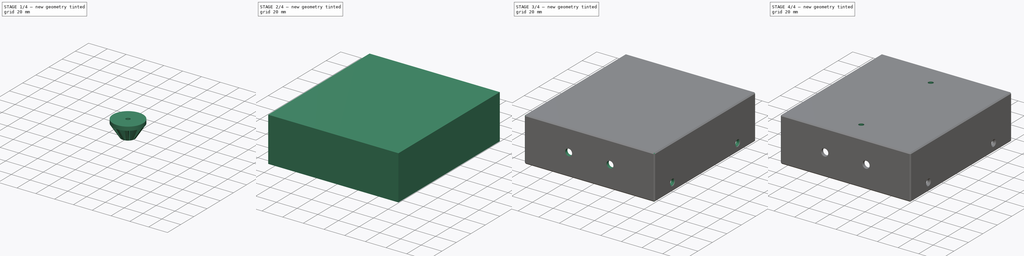
[diagram: build sequence overview — one tinted view per stage of 4, left to right]
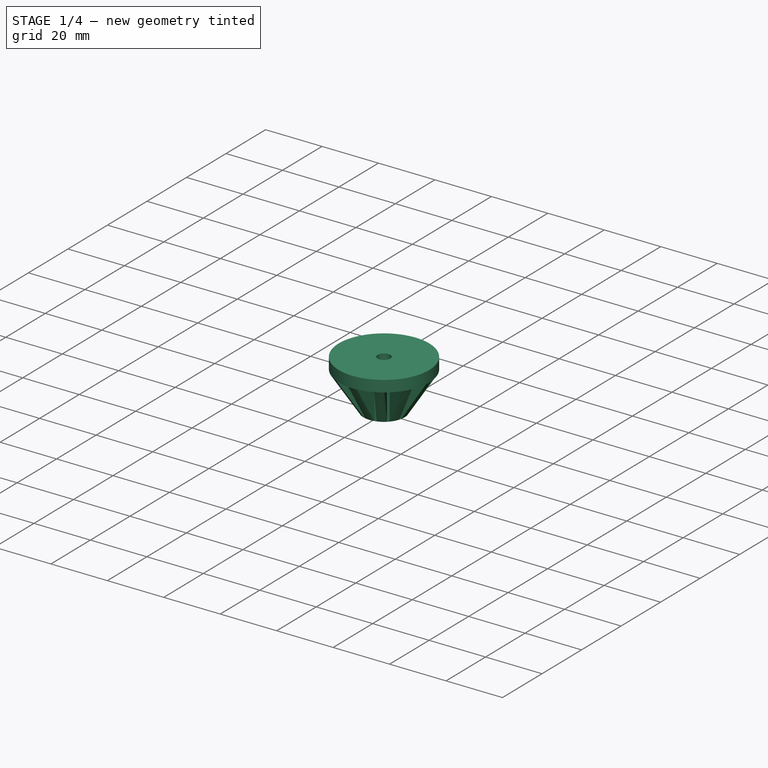
[diagram: stage 1 of 4 — iso view after this stage's code; geometry added in this stage tinted green]
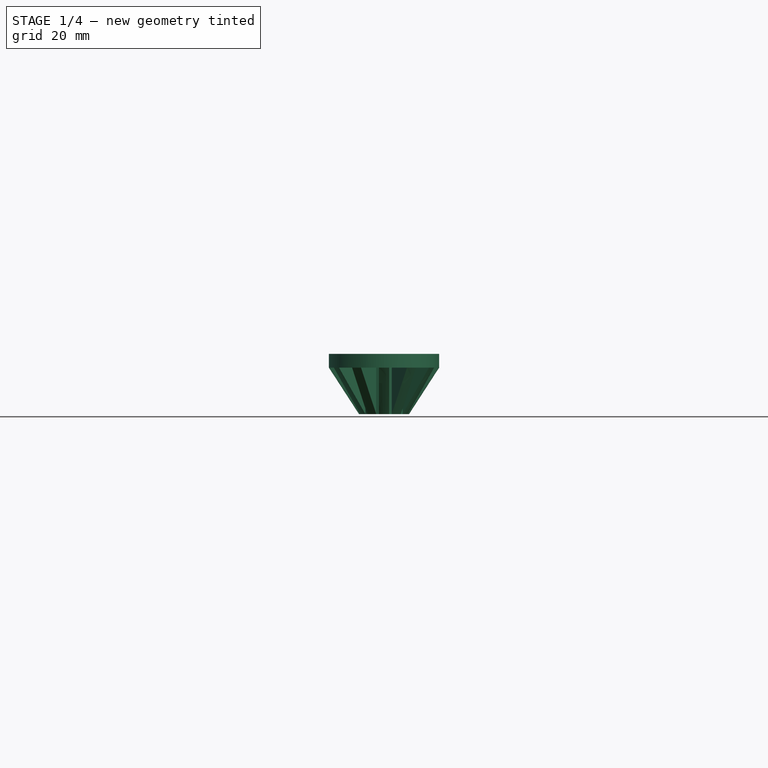
[diagram: stage 1 of 4 — front view after this stage's code; geometry added in this stage tinted green]
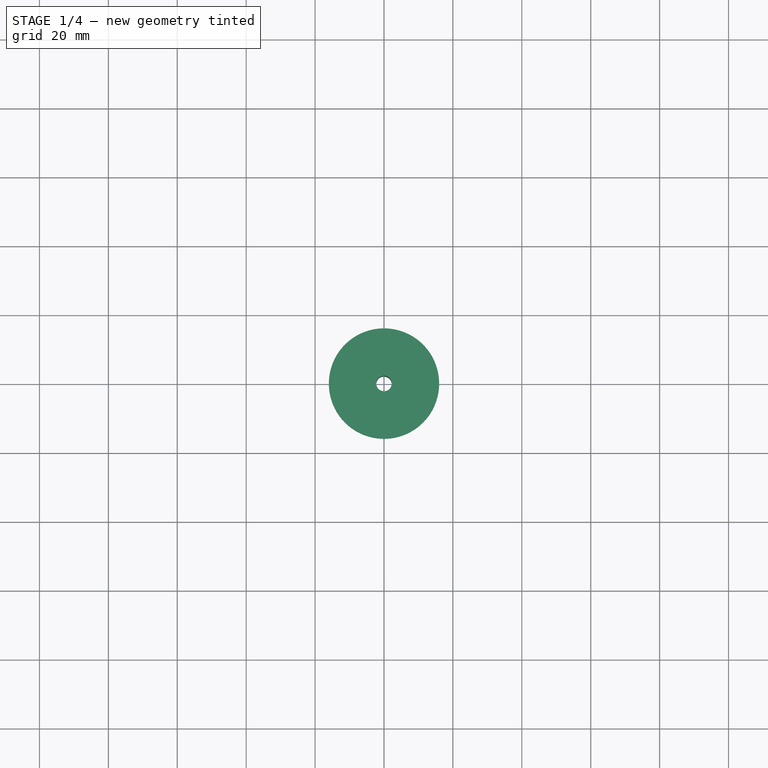
[diagram: stage 1 of 4 — top view after this stage's code; geometry added in this stage tinted green]
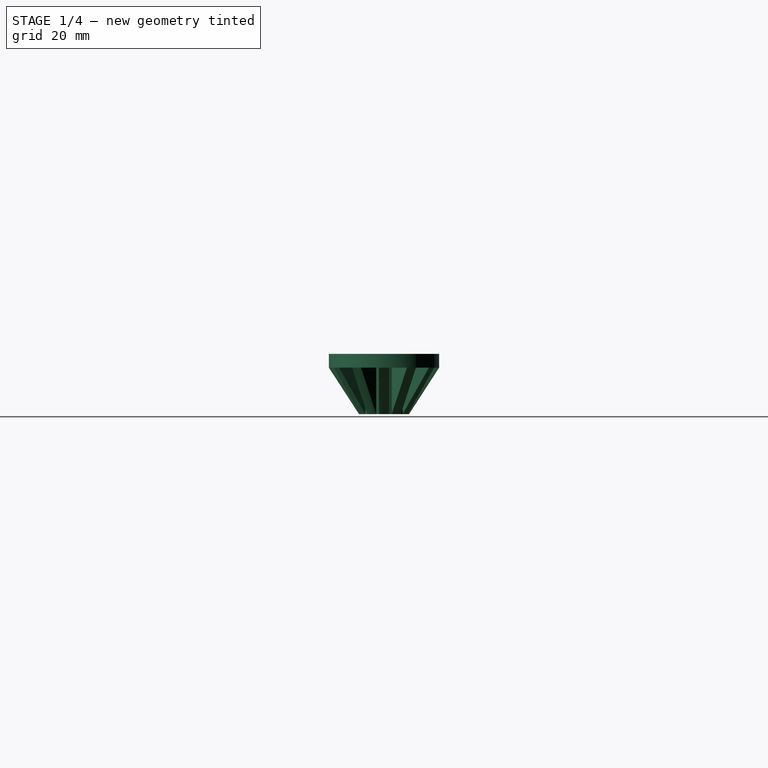
[diagram: stage 1 of 4 — right view after this stage's code; geometry added in this stage tinted green]
FCSTD DOCUMENT  (FreeCAD 0.18R16110 (Git))
Label: Top Cap Assembly
License: All rights reserved
LicenseURL: http://en.wikipedia.org/wiki/All_rights_reserved
objects: Sketcher::SketchObject×6, PartDesign::Chamfer×4, PartDesign::Pocket×4, PartDesign::Body×2, PartDesign::Pad×1, PartDesign::Thickness×1, PartDesign::Revolution×1, PartDesign::PolarPattern×1, Part::FeaturePython×1, App::Part×1
note: 27 computed .brp shape members not serialized (recipe doc carries the construction recipe); baked Part::Feature solids carry a one-line shape summary decoded from their .brp

FEATURE [PartDesign::Body] Body  label="Cap"
  Group = -> [Sketch,Pad,Thickness,Chamfer,Sketch001,Pocket,Chamfer001,Sketch002,Pocket001,Chamfer002,Sketch003,Pocket002,Chamfer003]
  Origin = -> Origin
  Tip = -> Chamfer003
FEATURE [Sketcher::SketchObject] Sketch004  label="Load Spreader profile"
  MapMode = 5
  Placement = pos=(0,0,0) rot=(0.57735,0.57735,0.57735;2.0944rad)
  Support = -> [YZ_Plane001]
  sketch-geometry (6):
    g0: LineSegment StartX=2.25 StartY=-17.5 StartZ=0 EndX=7.25 EndY=-17.5 EndZ=0
    g1: LineSegment StartX=7.25 StartY=-17.5 StartZ=0 EndX=16 EndY=-4 EndZ=0
    g2: LineSegment StartX=16 StartY=-4 StartZ=0 EndX=16 EndY=0 EndZ=0
    g3: LineSegment StartX=16 StartY=0 StartZ=0 EndX=2.25 EndY=0 EndZ=0
    g4: LineSegment StartX=2.25 StartY=0 StartZ=0 EndX=2.25 EndY=-17.5 EndZ=0
    g5: GeomPoint X=-2.25 Y=0 Z=0
  constraints (16):
    c: Horizontal(g0)
    c: Coincident(g0,g1)
    c: Coincident(g1,g2)
    c: Coincident(g2,g3)
    c: Horizontal(g3)
    c: Coincident(g3,g4)
    c: Coincident(g4,g0)
    c: Vertical(g4)
    c: Distance(g4) = 17.5
    c: Vertical(g2)
    c: Distance(g0) = 5
    c: DistanceX(g2) = 16
    c: Distance(g2) = 4
    c: Symmetric(g3,g5,g-2)
    c: Distance(g3,g5) = 4.5
    c: PointOnObject(g3,g-1)
FEATURE [PartDesign::Revolution] Revolution  label="Make load spreader cone"
  Angle = 360
  Axis = (-2e-16,3e-16,1)
  Base = (0,0,0)
  Placement = pos=(0,0,0) rot=(0.57735,0.57735,0.57735;2.0944rad)
  Profile = -> Sketch004
  ReferenceAxis = -> Sketch004 [V_Axis]
  Reversed = true
FEATURE [Sketcher::SketchObject] Sketch005  label="Load spreader cutting tool"
  ExternalGeometry = -> [Revolution]
  MapMode = 5
  Placement = pos=(9.7e-15,-6.8e-15,-17.5) rot=(0.707107,0.707107,0;3.14159rad)
  Support = -> [Revolution]
  sketch-geometry (6):
    g0: LineSegment [constr] StartX=1.3e-15 StartY=16 StartZ=0 EndX=1.3e-15 EndY=7.25 EndZ=0
    g1: LineSegment [constr] StartX=3.625 StartY=6.27868 StartZ=0 EndX=8 EndY=13.8564 EndZ=0
    g2: ArcOfCircle CenterX=0 CenterY=0 CenterZ=0 NormalX=0 NormalY=0 NormalZ=1 AngleXU=0 Radius=7.25 StartAngle=1.25537 EndAngle=1.36239
    g3: ArcOfCircle CenterX=0 CenterY=0 CenterZ=0 NormalX=0 NormalY=0 NormalZ=1 AngleXU=0 Radius=16 StartAngle=1.14098 EndAngle=1.47691
    g4: LineSegment StartX=2.24913 StartY=6.89231 StartZ=0 EndX=6.66723 EndY=14.5447 EndZ=0
    g5: LineSegment StartX=1.5 StartY=15.9295 StartZ=0 EndX=1.5 EndY=7.09313 EndZ=0
  constraints (18):
    c: Vertical(g0)
    c: Angle(g1,g0) = 0.523599
    c: Perpendicular(g0,g-4) = 4.71239
    c: Perpendicular(g1,g-4) = 1.5708
    c: Perpendicular(g1,g-3) = 1.5708
    c: Perpendicular(g0,g-3) = 4.71239
    c: Coincident(g2,g3)
    c: Coincident(g2,g-3)
    c: Coincident(g5,g3)
    c: Coincident(g2,g5)
    c: Coincident(g2,g4)
    c: Coincident(g3,g4)
    c: Equal(g-4,g2)
    c: Equal(g3,g-3)
    c: Parallel(g4,g1)
    c: Parallel(g0,g5)
    c: DistanceX(g0,g3) = 1.5
    c: Distance(g3,g1) = 1.5
FEATURE [PartDesign::Pocket] Pocket003  label="Cut waste"
  BaseFeature = -> Revolution
  Length = 13.5
  Length2 = 100
  Placement = pos=(0,0,0) rot=(0.57735,0.57735,0.57735;2.0944rad)
  Profile = -> Sketch005
  Type = 0
FEATURE [PartDesign::PolarPattern] PolarPattern
  Angle = 360
  Axis = -> Sketch005 [N_Axis]
  BaseFeature = -> Pocket003
  Occurrences = 12
  Originals = -> [Pocket003]
  Placement = pos=(0,0,0) rot=(0.57735,0.57735,0.57735;2.0944rad)
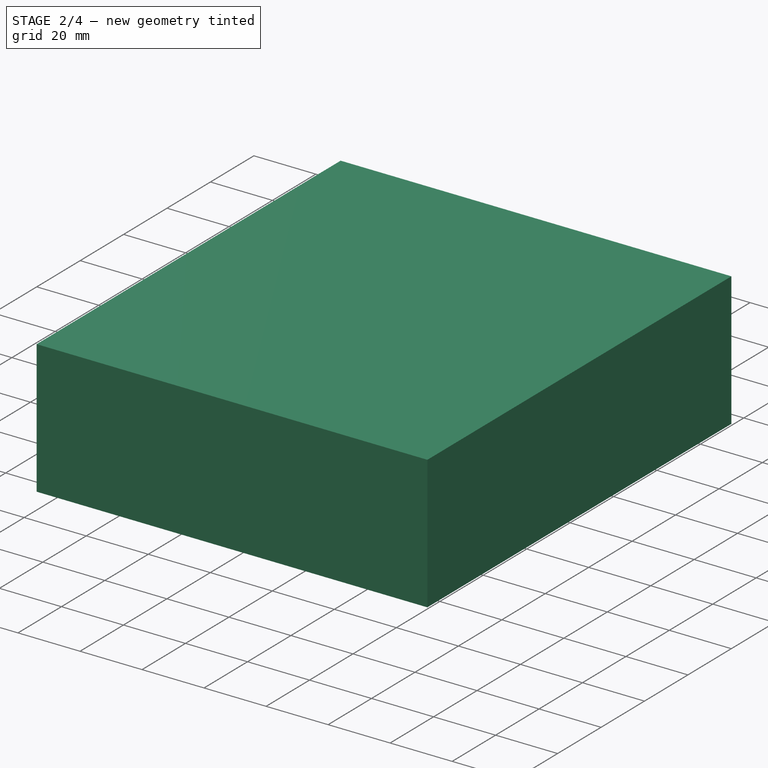
[diagram: stage 2 of 4 — iso view after this stage's code; geometry added in this stage tinted green]
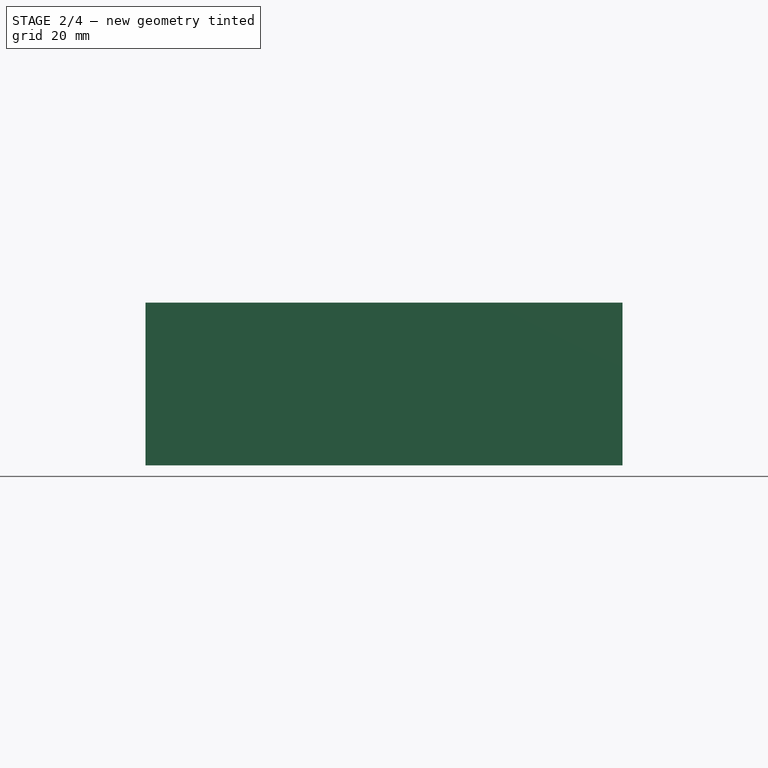
[diagram: stage 2 of 4 — front view after this stage's code; geometry added in this stage tinted green]
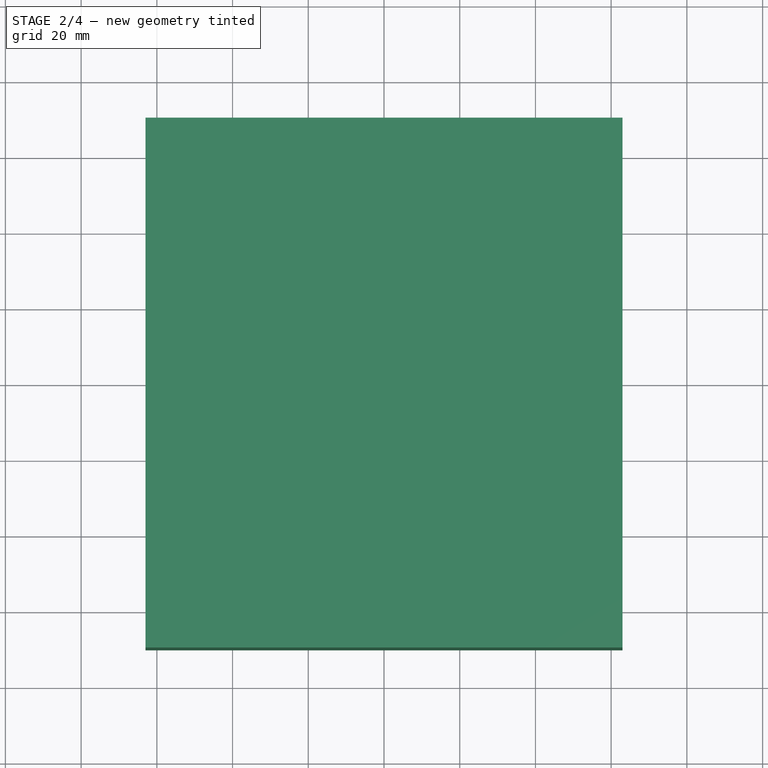
[diagram: stage 2 of 4 — top view after this stage's code; geometry added in this stage tinted green]
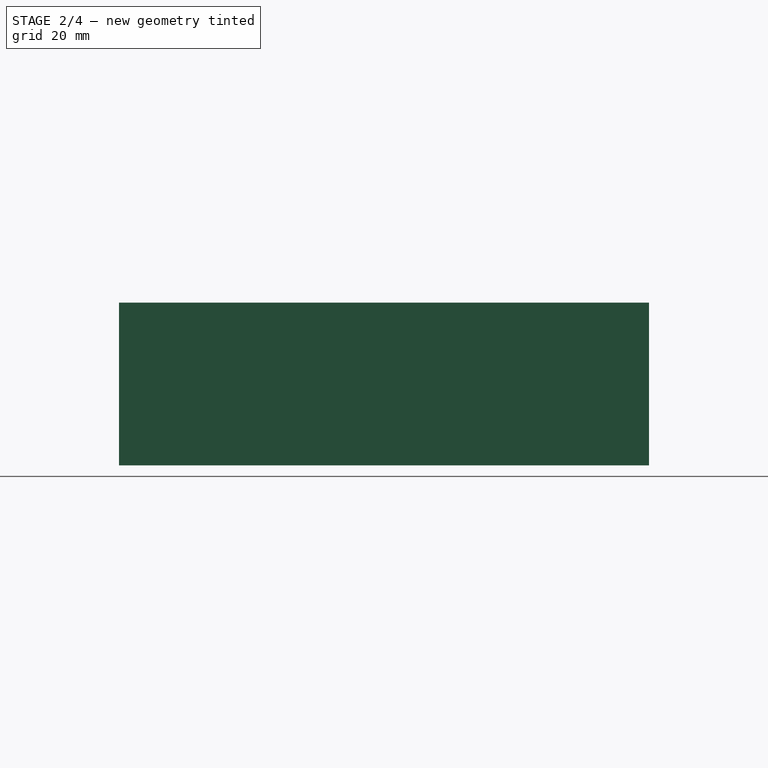
[diagram: stage 2 of 4 — right view after this stage's code; geometry added in this stage tinted green]
FEATURE [Sketcher::SketchObject] Sketch  label="top cap profile"
  MapMode = 5
  Support = -> [XY_Plane]
  sketch-geometry (4):
    g0: LineSegment StartX=-63 StartY=70 StartZ=0 EndX=63 EndY=70 EndZ=0
    g1: LineSegment StartX=63 StartY=70 StartZ=0 EndX=63 EndY=-70 EndZ=0
    g2: LineSegment StartX=63 StartY=-70 StartZ=0 EndX=-63 EndY=-70 EndZ=0
    g3: LineSegment StartX=-63 StartY=-70 StartZ=0 EndX=-63 EndY=70 EndZ=0
  constraints (10):
    c: Coincident(g0,g1)
    c: Coincident(g1,g2)
    c: Coincident(g2,g3)
    c: Coincident(g3,g0)
    c: Horizontal(g2)
    c: Vertical(g1)
    c: Symmetric(g0,g0,g-2)
    c: Symmetric(g0,g2,g-1)
    c: Distance(g0) = 126
    c: Distance(g3) = 140
FEATURE [PartDesign::Pad] Pad  label="Make top cap block"
  Length = 43
  Length2 = 100
  Profile = -> Sketch
  Type = 0
FEATURE [PartDesign::Thickness] Thickness  label="Turn block into a shell"
  Base = -> Pad [Face5]
  BaseFeature = -> Pad
  Join = 1
  Mode = 0
  Reversed = true
  Value = 3
FEATURE [PartDesign::Body] Body001  label="Optional Load spreader"
  Group = -> [Sketch004,Revolution,Sketch005,Pocket003,PolarPattern]
  Origin = -> Origin001
  Placement = pos=(0,-48,39.9) rot=(0,0,1;0rad)
  Tip = -> PolarPattern
FEATURE [Part::FeaturePython] Array  label="Optional load spreader array"  # Draft array (typed FeaturePython)
  Angle = 360
  ArrayType = 0
  Axis = (0,0,1)
  Base = -> Body001
  Center = (0,0,0)
  Fuse = false
  IntervalAxis = (0,0,0)
  IntervalX = (0,0,0)
  IntervalY = (0,96,0)
  IntervalZ = (0,0,0)
  NumberPolar = 1
  NumberX = 1
  NumberY = 2
  NumberZ = 1
FEATURE [App::Part] Part  label="Final top cap assembly"
  Group = -> [Body,Body001,Array]
  Origin = -> Origin002
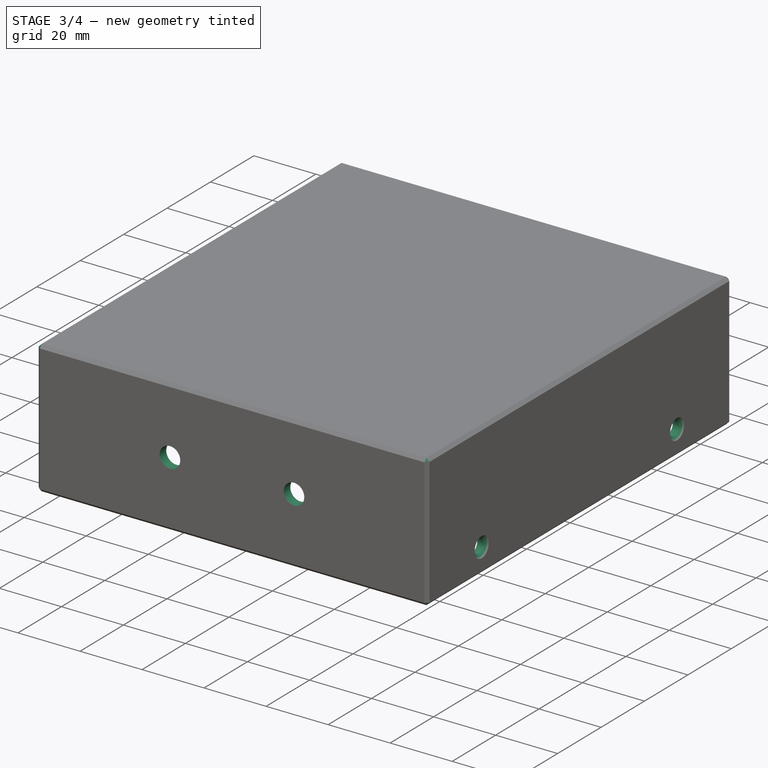
[diagram: stage 3 of 4 — iso view after this stage's code; geometry added in this stage tinted green]
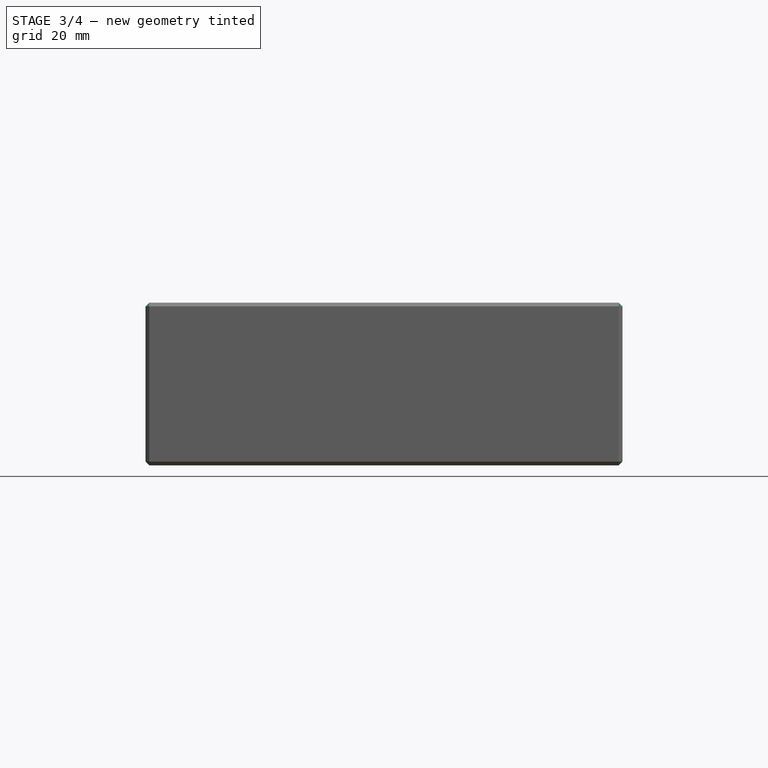
[diagram: stage 3 of 4 — front view after this stage's code; geometry added in this stage tinted green]
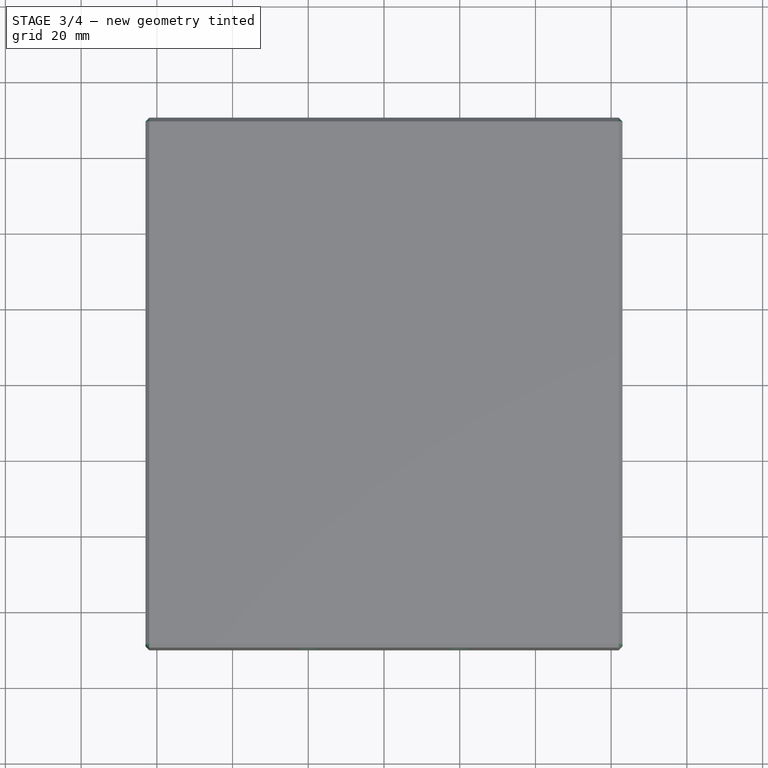
[diagram: stage 3 of 4 — top view after this stage's code; geometry added in this stage tinted green]
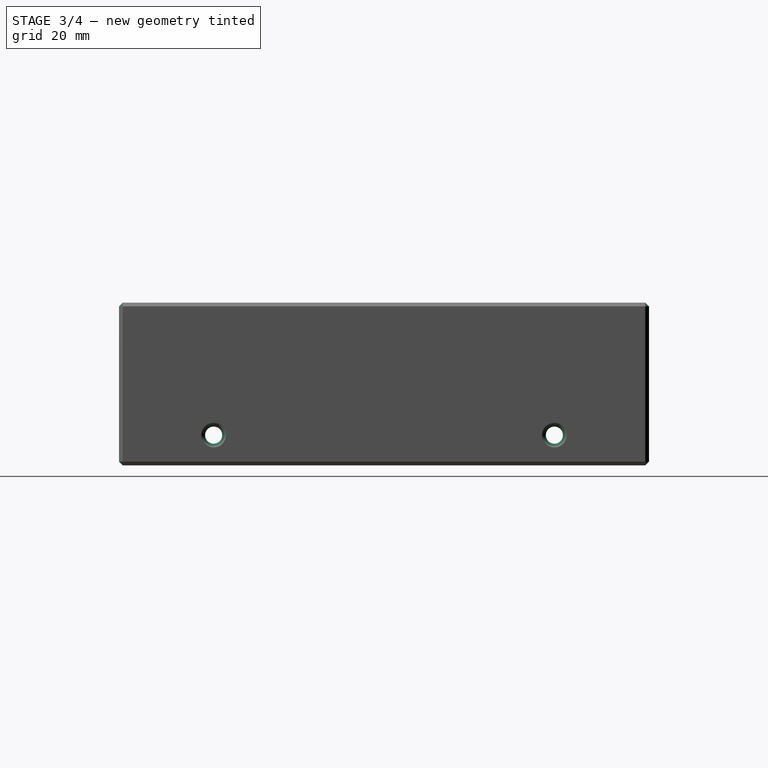
[diagram: stage 3 of 4 — right view after this stage's code; geometry added in this stage tinted green]
FEATURE [PartDesign::Chamfer] Chamfer  label="Inner corner chamfers"
  Base = -> Thickness [Edge22,Edge24,Edge23,Edge17,Edge18,Edge19,Edge21,Edge20]
  BaseFeature = -> Thickness
  Size = 2
FEATURE [Sketcher::SketchObject] Sketch001  label="Cap retaining holes spec"
  ExternalGeometry = -> [Chamfer]
  MapMode = 5
  Placement = pos=(-63,0,0) rot=(0.57735,-0.57735,-0.57735;2.0944rad)
  Support = -> [Chamfer]
  sketch-geometry (2):
    g0: Circle CenterX=-45 CenterY=8 CenterZ=0 NormalX=0 NormalY=0 NormalZ=1 AngleXU=0 Radius=2.25
    g1: Circle CenterX=45 CenterY=8 CenterZ=0 NormalX=0 NormalY=0 NormalZ=1 AngleXU=0 Radius=2.25
  constraints (5):
    c: Symmetric(g0,g1,g-2)
    c: Radius(g0) = 2.25
    c: Equal(g0,g1)
    c: DistanceX(g-3,g0) = 25
    c: DistanceY(g-3,g0) = 8
FEATURE [PartDesign::Pocket] Pocket  label="Add cap retaining screwholes"
  BaseFeature = -> Chamfer
  Length = 5
  Length2 = 100
  Profile = -> Sketch001
  Type = 1
FEATURE [PartDesign::Chamfer] Chamfer001  label="Prettying chamfer"
  Base = -> Pocket [Face13,Face12,Face11,Face10]
  BaseFeature = -> Pocket
  Size = 1
FEATURE [Sketcher::SketchObject] Sketch002  label="Badge holding holes"
  ExternalGeometry = -> [Chamfer001]
  MapMode = 5
  Placement = pos=(0,-70,0) rot=(1,0,0;1.5708rad)
  Support = -> [Chamfer001]
  sketch-geometry (3):
    g0: Circle CenterX=-20 CenterY=21.5 CenterZ=0 NormalX=0 NormalY=0 NormalZ=1 AngleXU=0 Radius=3.3
    g1: Circle CenterX=20 CenterY=21.5 CenterZ=0 NormalX=0 NormalY=0 NormalZ=1 AngleXU=0 Radius=3.3
    g2: LineSegment [constr] StartX=-23.3 StartY=21.5 StartZ=0 EndX=-62 EndY=21.5 EndZ=0
  constraints (7):
    c: Radius(g0) = 3.3
    c: Equal(g0,g1)
    c: Distance(g0,g1) = 40
    c: Symmetric(g0,g1,g-2)
    c: Perpendicular(g2,g0) = 1.5708
    c: Perpendicular(g2,g-3) = 4.71239
    c: Symmetric(g-3,g-3,g2)
FEATURE [PartDesign::Pocket] Pocket001  label="Add badge holding holes"
  BaseFeature = -> Chamfer001
  Length = 5
  Length2 = 100
  Profile = -> Sketch002
  Type = 0
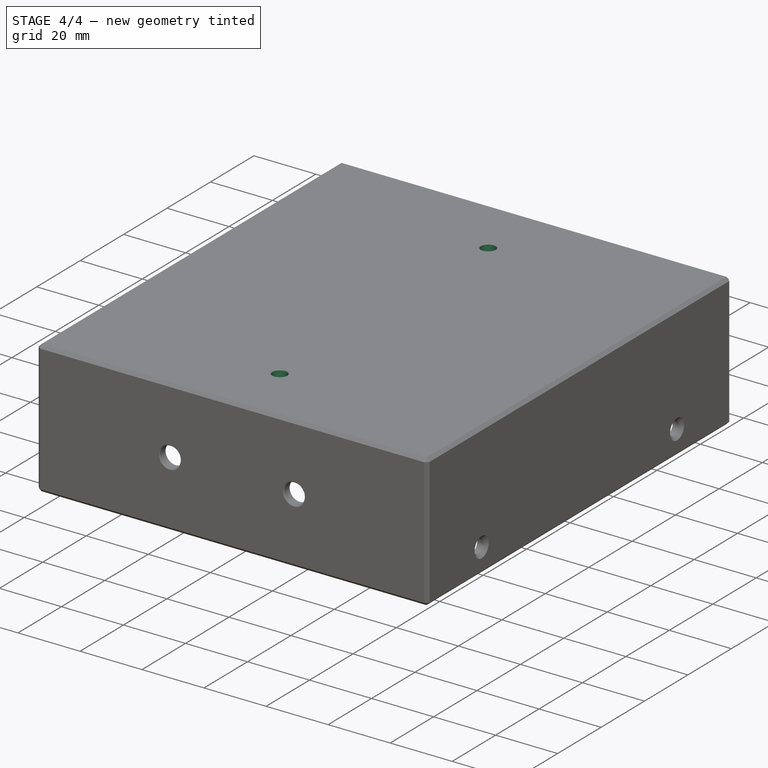
[diagram: stage 4 of 4 — iso view after this stage's code; geometry added in this stage tinted green]
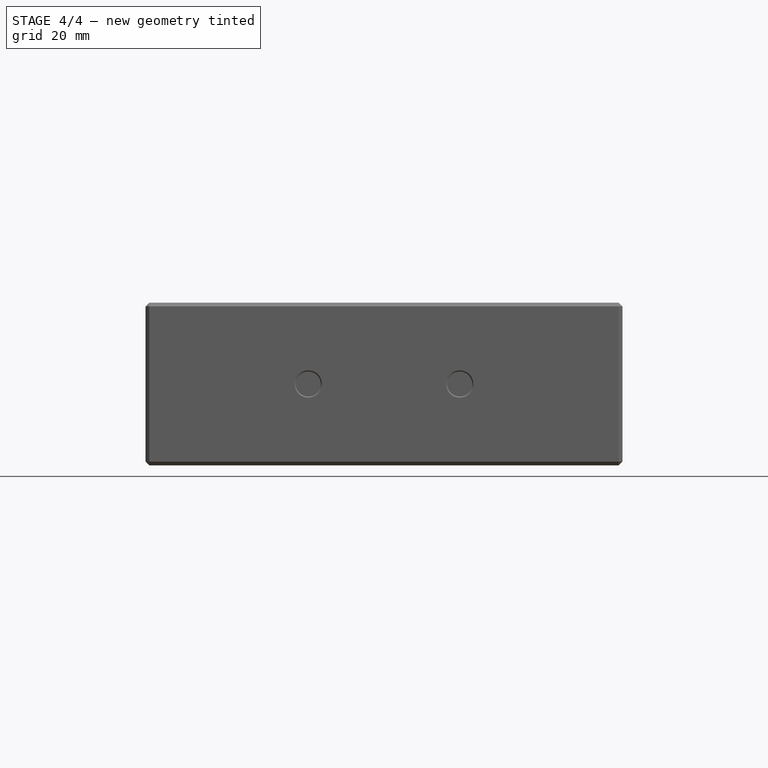
[diagram: stage 4 of 4 — front view after this stage's code; geometry added in this stage tinted green]
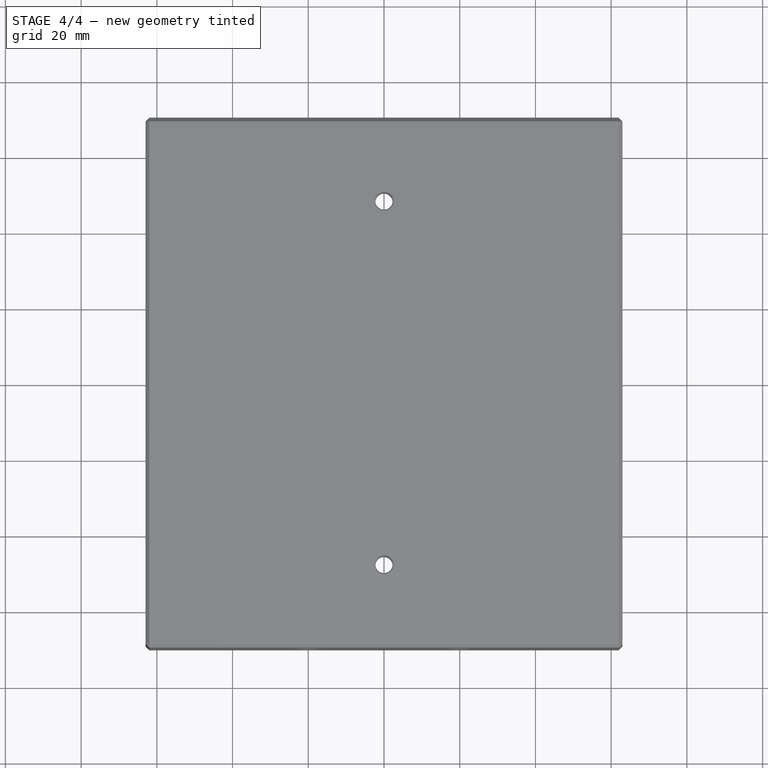
[diagram: stage 4 of 4 — top view after this stage's code; geometry added in this stage tinted green]
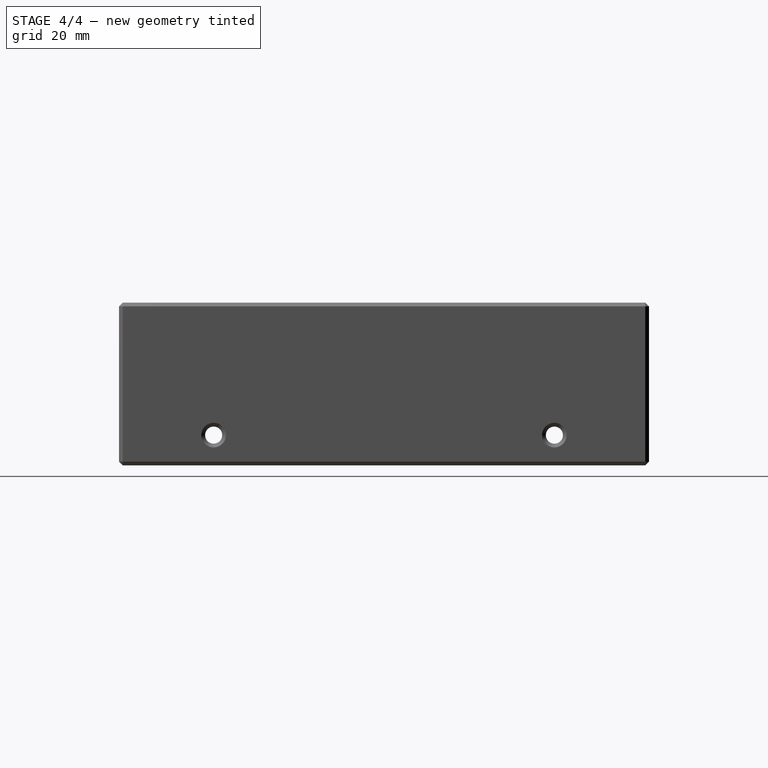
[diagram: stage 4 of 4 — right view after this stage's code; geometry added in this stage tinted green]
FEATURE [PartDesign::Chamfer] Chamfer002  label="Chamfer badge holding holes"
  Base = -> Pocket001 [Face35,Face34]
  BaseFeature = -> Pocket001
  Size = 0.3
FEATURE [Sketcher::SketchObject] Sketch003  label="Handle hole spec"
  MapMode = 5
  Placement = pos=(0,0,40) rot=(1,0,0;3.14159rad)
  Support = -> [Chamfer002]
  sketch-geometry (2):
    g0: Circle CenterX=0 CenterY=48 CenterZ=0 NormalX=0 NormalY=0 NormalZ=1 AngleXU=0 Radius=2.3
    g1: Circle CenterX=0 CenterY=-48 CenterZ=0 NormalX=0 NormalY=0 NormalZ=1 AngleXU=0 Radius=2.3
  constraints (5):
    c: Symmetric(g1,g0,g-1)
    c: PointOnObject(g0,g-2)
    c: Distance(g0,g1) = 96
    c: Radius(g0) = 2.3
    c: Equal(g0,g1)
FEATURE [PartDesign::Pocket] Pocket002  label="Add handle holes"
  BaseFeature = -> Chamfer002
  Length = 5
  Length2 = 100
  Profile = -> Sketch003
  Type = 1
FEATURE [PartDesign::Chamfer] Chamfer003  label="Tidy handle holes"
  Base = -> Pocket002 [Face41,Face40]
  BaseFeature = -> Pocket002
  Size = 0.25
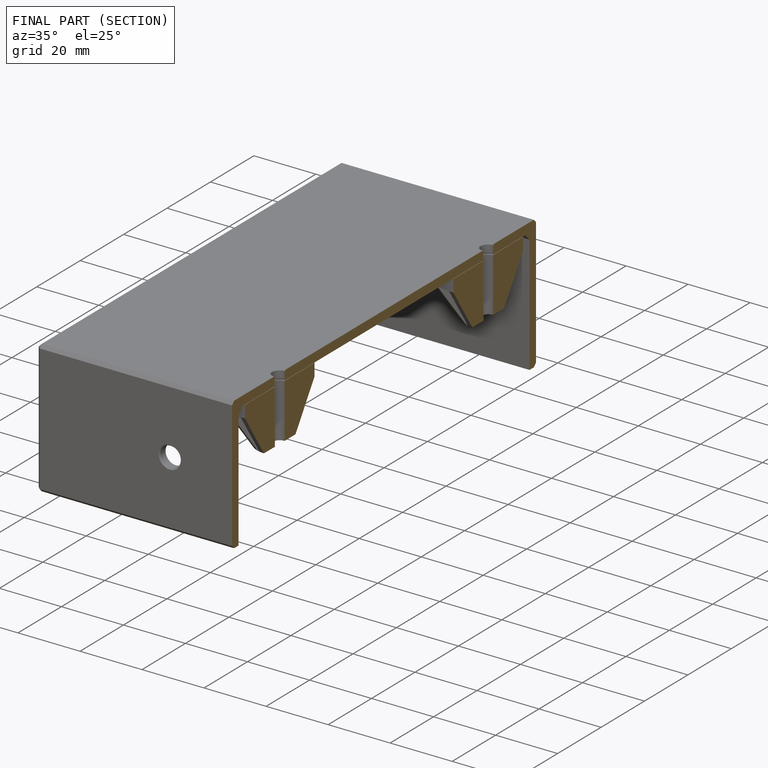
[diagram: finished part — half-section view (interior)]
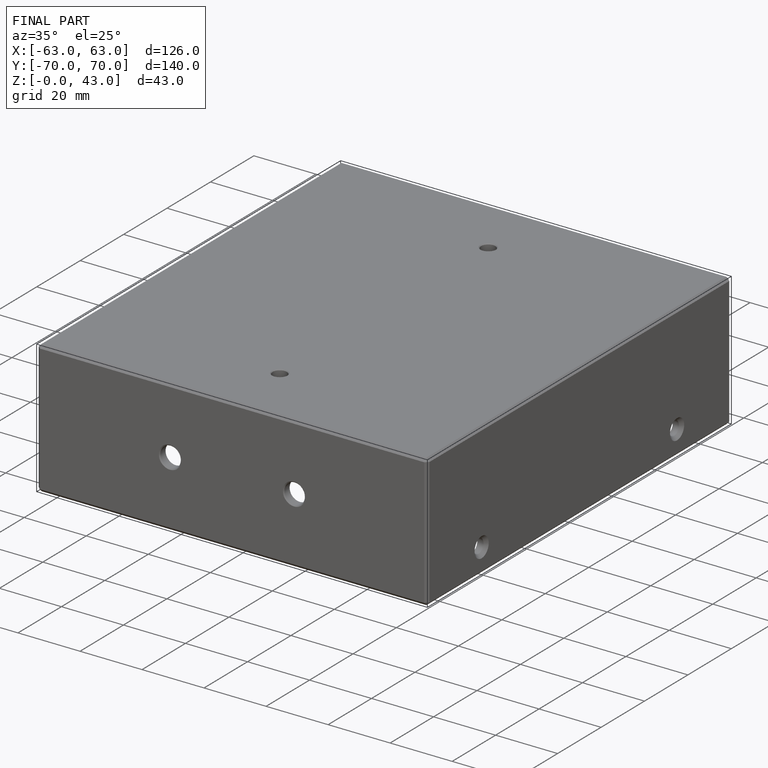
[diagram: finished part — iso view with bounding-box wireframe]
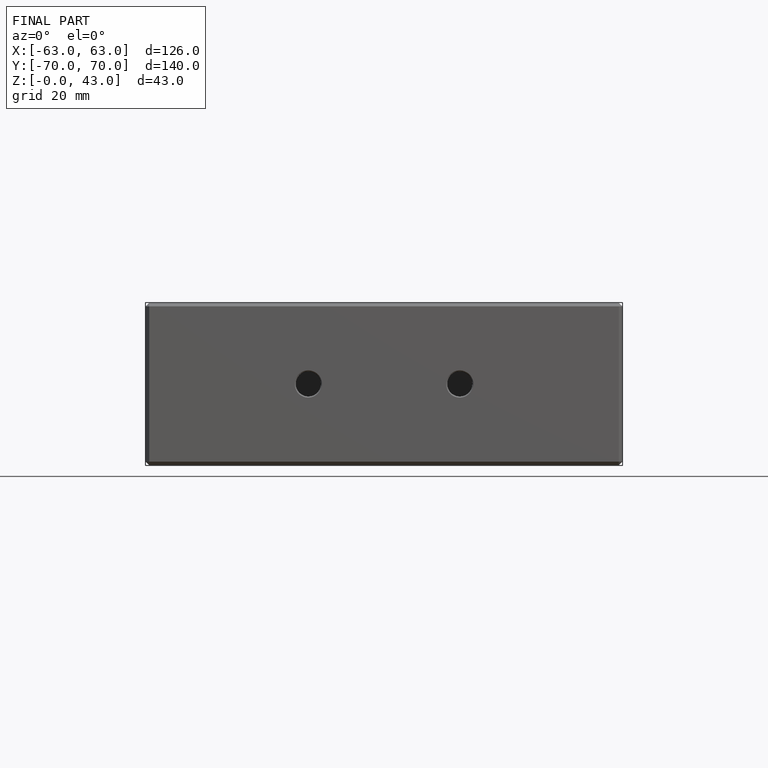
[diagram: finished part — front view with bounding-box wireframe]
